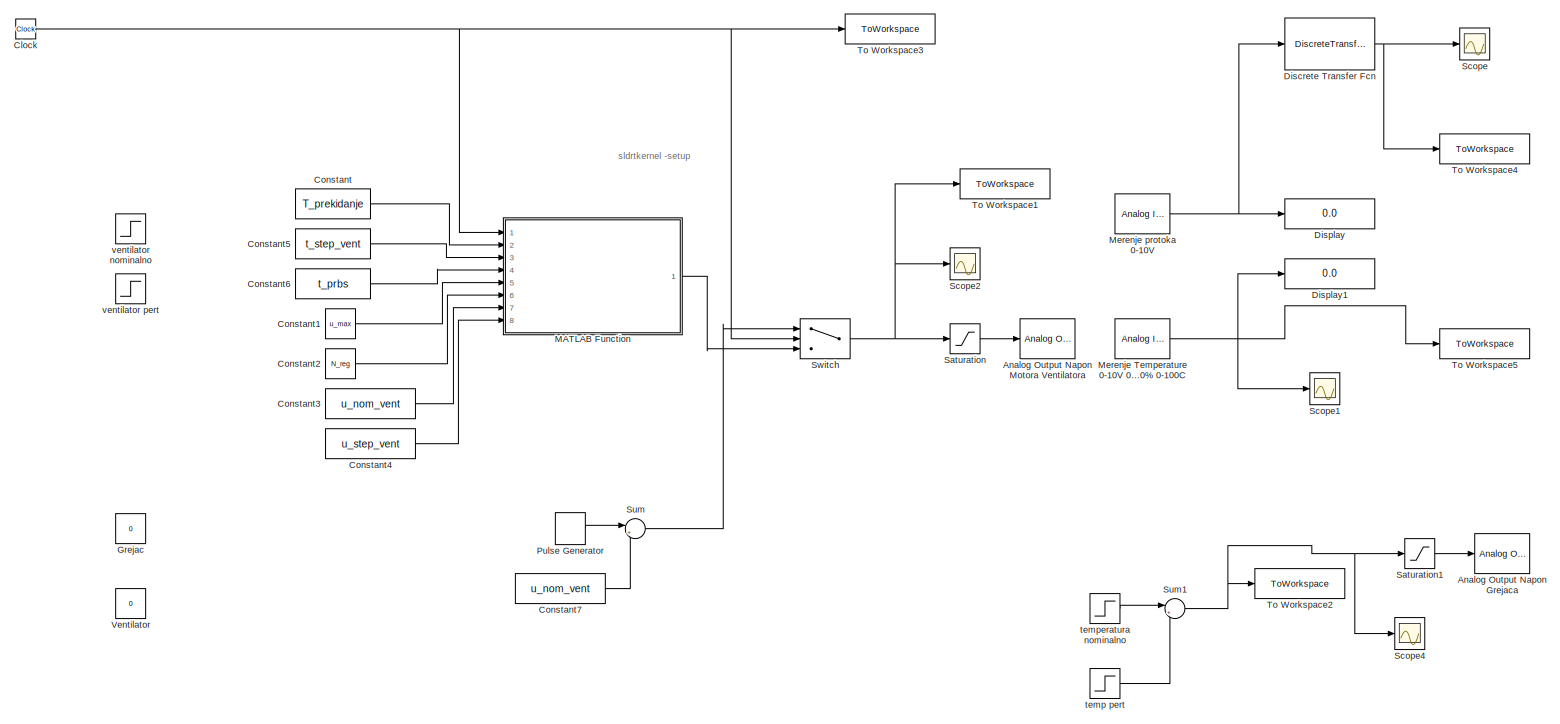
[diagram: root canvas - part 1/1, most of the canvas]
MODEL slx_ffb8e37f3c81
KIND model
CONFIG AbsTol = auto
CONFIG EnableMultiTasking = off
CONFIG FixedStep = sim_step
CONFIG MaxStep = auto
CONFIG MinStep = auto
CONFIG RelTol = 1e-3
CONFIG SampleTimeConstraint = Unconstrained
CONFIG SolverName = VariableStepAuto
CONFIG StartTime = 0.0
CONFIG StopTime = t_end
BLOCK [Reference] Analog Output Napon Grejaca  REF=sldrtlib/Analog Output
  AttributesFormatString = National Instruments\nPCIe-6323 [auto]
  Ports = [1]
  SourceBlock = sldrtlib/Analog Output
  SourceProductBaseCode = WT
  SourceType = Simulink Desktop Real-Time Analog Output
BLOCK [Reference] Analog Output Napon Motora Ventilatora  REF=sldrtlib/Analog Output
  AttributesFormatString = National Instruments\nPCIe-6323 [auto]
  Ports = [1]
  SourceBlock = sldrtlib/Analog Output
  SourceProductBaseCode = WT
  SourceType = Simulink Desktop Real-Time Analog Output
BLOCK [Clock] Clock
BLOCK [Constant] Constant
  Value = T_prekidanje
BLOCK [Constant] Constant1
  Value = u_max
BLOCK [Constant] Constant2
  Value = N_reg
BLOCK [Constant] Constant3
  Value = u_nom_vent
BLOCK [Constant] Constant4
  Value = u_step_vent
BLOCK [Constant] Constant5
  Value = t_step_vent
BLOCK [Constant] Constant6
  Value = t_prbs
BLOCK [Constant] Constant7
  Value = u_nom_vent
BLOCK [DiscreteTransferFcn] Discrete Transfer Fcn
  Denominator = [1 -a1]
  InputPortMap = u0
  Numerator = [1-a1]
  Ports = [1, 1]
BLOCK [Display] Display
  Decimation = 1
  Ports = [1]
BLOCK [Display] Display1
  Decimation = 1
  Ports = [1]
BLOCK [Constant] Grejac
  Commented = on
  Value = 0
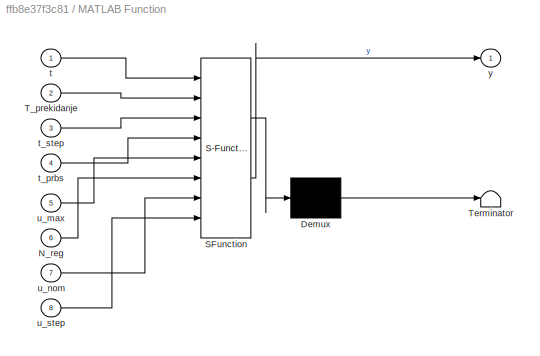
BLOCK [SubSystem] MATLAB Function
  ErrorFcn = Stateflow.Translate.translate
  PermitHierarchicalResolution = ExplicitOnly
  Ports = [8, 1]
  RequestExecContextInheritance = off
  SFBlockType = MATLAB Function
  TreatAsAtomicUnit = on
BLOCK [Demux] MATLAB Function/ Demux 
  Outputs = 1
  Ports = [1, 1]
BLOCK [S-Function] MATLAB Function/ SFunction 
  EnableBusSupport = on
  FunctionName = sf_sfun
  PortCounts = [8 2]
  Ports = [8, 2]
  SFcnIsStateOwnerBlock = off
  SFunctionDeploymentMode = off
  Tag = Stateflow S-Function 2
BLOCK [Terminator] MATLAB Function/ Terminator 
BLOCK [Inport] MATLAB Function/N_reg
  Port = 6
BLOCK [Inport] MATLAB Function/T_prekidanje
  Port = 2
BLOCK [Inport] MATLAB Function/t
BLOCK [Inport] MATLAB Function/t_prbs
  Port = 4
BLOCK [Inport] MATLAB Function/t_step
  Port = 3
BLOCK [Inport] MATLAB Function/u_max
  Port = 5
BLOCK [Inport] MATLAB Function/u_nom
  Port = 7
BLOCK [Inport] MATLAB Function/u_step
  Port = 8
BLOCK [Outport] MATLAB Function/y
BLOCK [Reference] Merenje Temperature 0-10V 0-100% 0-100C  REF=sldrtlib/Analog Input
  AttributesFormatString = National Instruments\nPCIe-6323 [auto]
  Ports = [0, 1]
  SourceBlock = sldrtlib/Analog Input
  SourceProductBaseCode = WT
  SourceType = Simulink Desktop Real-Time Analog Input
BLOCK [Reference] Merenje protoka 0-10V  REF=sldrtlib/Analog Input
  AttributesFormatString = National Instruments\nPCIe-6323 [auto]
  Ports = [0, 1]
  SourceBlock = sldrtlib/Analog Input
  SourceProductBaseCode = WT
  SourceType = Simulink Desktop Real-Time Analog Input
BLOCK [DiscretePulseGenerator] Pulse Generator
  Amplitude = u_max
  Period = 2*T_prekidanje
  Ports = [0, 1]
  PulseType = Time based
  PulseWidth = 50
BLOCK [Saturate] Saturation
  LowerLimit = 0
  UpperLimit = 10
BLOCK [Saturate] Saturation1
  LowerLimit = 0
  UpperLimit = 10
BLOCK [Scope] Scope
  Floating = off
  NumInputPorts = 1
  Ports = [1]
  ScopeSpecificationString = Simulink.scopes.TimeScopeBlockCfg('CurrentConfiguration', extmgr.ConfigurationSet(extmgr.Configuration('Core','General UI',true),extmgr.Configuration('Core','Source UI',true),extmgr.Configuration('Sources','WiredSimulink',true,'DataLoggingVariableName','ScopeData1'),extmgr.Configuration('Visuals','Time Domain',true,'SerializedDisplays',{struct('MinYLimReal','-0.89623','MaxYLimReal','8.06604','YLab...<+1452ch>
BLOCK [Scope] Scope1
  Floating = off
  NumInputPorts = 1
  Ports = [1]
  ScopeSpecificationString = Simulink.scopes.TimeScopeBlockCfg('CurrentConfiguration', extmgr.ConfigurationSet(extmgr.Configuration('Core','General UI',true),extmgr.Configuration('Core','Source UI',true),extmgr.Configuration('Sources','WiredSimulink',true,'DataLoggingVariableName','ScopeData2'),extmgr.Configuration('Visuals','Time Domain',true,'SerializedDisplays',{struct('MinYLimReal','2.64675','MaxYLimReal','3.56446','YLabe...<+1421ch>
BLOCK [Scope] Scope2
  Floating = off
  NumInputPorts = 1
  Ports = [1]
  ScopeSpecificationString = Simulink.scopes.TimeScopeBlockCfg('CurrentConfiguration', extmgr.ConfigurationSet(extmgr.Configuration('Core','General UI',true),extmgr.Configuration('Core','Source UI',true),extmgr.Configuration('Sources','WiredSimulink',true,'DataLoggingSaveFormat','StructureWithTime','DataLoggingDecimation','1','DataLoggingDecimateData',true,'DataLoggingVariableName','ScopeData2'),extmgr.Configuration('Visuals'...<+1688ch>
BLOCK [Scope] Scope4
  Floating = off
  NumInputPorts = 1
  Ports = [1]
  ScopeSpecificationString = Simulink.scopes.TimeScopeBlockCfg('CurrentConfiguration', extmgr.ConfigurationSet(extmgr.Configuration('Core','General UI',true),extmgr.Configuration('Core','Source UI',true),extmgr.Configuration('Sources','WiredSimulink',true,'DataLoggingSaveFormat','StructureWithTime','DataLoggingDecimation','1','DataLoggingDecimateData',true),extmgr.Configuration('Visuals','Time Domain',true,'SerializedDisplays...<+1577ch>
BLOCK [Sum] Sum
  Inputs = |++
  Ports = [2, 1]
BLOCK [Sum] Sum1
  Inputs = |++
  Ports = [2, 1]
BLOCK [Switch] Switch
  Criteria = u2 > Threshold
  InputSameDT = off
  SaturateOnIntegerOverflow = off
  Threshold = t_bp
BLOCK [ToWorkspace] To Workspace1
  FixptAsFi = on
  MaxDataPoints = inf
  Ports = [1]
  SampleTime = T_samp
  SaveFormat = Timeseries
  VariableName = u_out_vent
BLOCK [ToWorkspace] To Workspace2
  FixptAsFi = on
  MaxDataPoints = inf
  Ports = [1]
  SampleTime = -1
  SaveFormat = Timeseries
  VariableName = u_out_temp
BLOCK [ToWorkspace] To Workspace3
  FixptAsFi = on
  MaxDataPoints = inf
  Ports = [1]
  SampleTime = -1
  SaveFormat = Timeseries
  VariableName = t_out
BLOCK [ToWorkspace] To Workspace4
  FixptAsFi = on
  MaxDataPoints = inf
  Ports = [1]
  SampleTime = T_samp
  SaveFormat = Timeseries
  VariableName = y_out_vent
BLOCK [ToWorkspace] To Workspace5
  FixptAsFi = on
  MaxDataPoints = inf
  Ports = [1]
  SampleTime = -1
  SaveFormat = Timeseries
  VariableName = y_out_temp
BLOCK [Constant] Ventilator
  Commented = on
  Value = 0
BLOCK [Step] temp pert
  After = 0
  SampleTime = 0
  Time = 0
  ZeroCross = off
BLOCK [Step] temperatura nominalno
  After = u_nom_temp
  SampleTime = 0
  Time = 0
BLOCK [Step] ventilator nominalno
  After = u_nom_vent
  Commented = on
  SampleTime = 0
  Time = 5
BLOCK [Step] ventilator pert
  After = u_step_vent
  Commented = on
  SampleTime = 0
  Time = t_step_vent
ANNOTATION (root): sldrtkernel -setup
NET Clock:1 -> MATLAB Function:1, Switch:2, To Workspace3:1
LINE Constant1:1 -> MATLAB Function:5
LINE Constant2:1 -> MATLAB Function:6
LINE Constant3:1 -> MATLAB Function:7
LINE Constant4:1 -> MATLAB Function:8
LINE Constant5:1 -> MATLAB Function:3
LINE Constant6:1 -> MATLAB Function:4
LINE Constant7:1 -> Sum:2
LINE Constant:1 -> MATLAB Function:2
NET Discrete Transfer Fcn:1 -> Scope:1, To Workspace4:1
LINE MATLAB Function:1 -> Switch:3
NET Merenje Temperature 0-10V 0-100% 0-100C:1 -> Display1:1, Scope1:1, To Workspace5:1
NET Merenje protoka 0-10V:1 -> Discrete Transfer Fcn:1, Display:1
LINE Pulse Generator:1 -> Sum:1
LINE Saturation1:1 -> Analog Output Napon Grejaca:1
LINE Saturation:1 -> Analog Output Napon Motora Ventilatora:1
NET Sum1:1 -> Saturation1:1, Scope4:1, To Workspace2:1
LINE Sum:1 -> Switch:1
NET Switch:1 -> Saturation:1, Scope2:1, To Workspace1:1
LINE temp pert:1 -> Sum1:2
LINE temperatura nominalno:1 -> Sum1:1
note: NET lines group one-source signal fan-out (src -> all destinations, sorted); 1:1 wires keep LINE
CHART MATLAB Function states=1 transitions=1
  STATE_LABEL 'eML_blk_kernel()'
  STATE_LABEL 'SCRIPT:\nfunction y = PRBS(t, T_prekidanje, t_step, t_prbs, u_max, N_reg, u_nom, u_step)\n    persistent reg\n    \n    if (isempty(reg))\n       reg = ones(1,N_reg); \n    end\n    \n    if (t <= t_step)\n        y = u_nom;\n    elseif ((t > t_step) && (t < t_prbs))\n        y = u_nom + u_step;\n    else \n        if (mod(t,T_prekidanje)==0)\n            temp = mod(reg(2)+reg(6)+reg(3)+reg(9),2);\n\n            ...<+90ch>'
CHART  states=0 transitions=0
